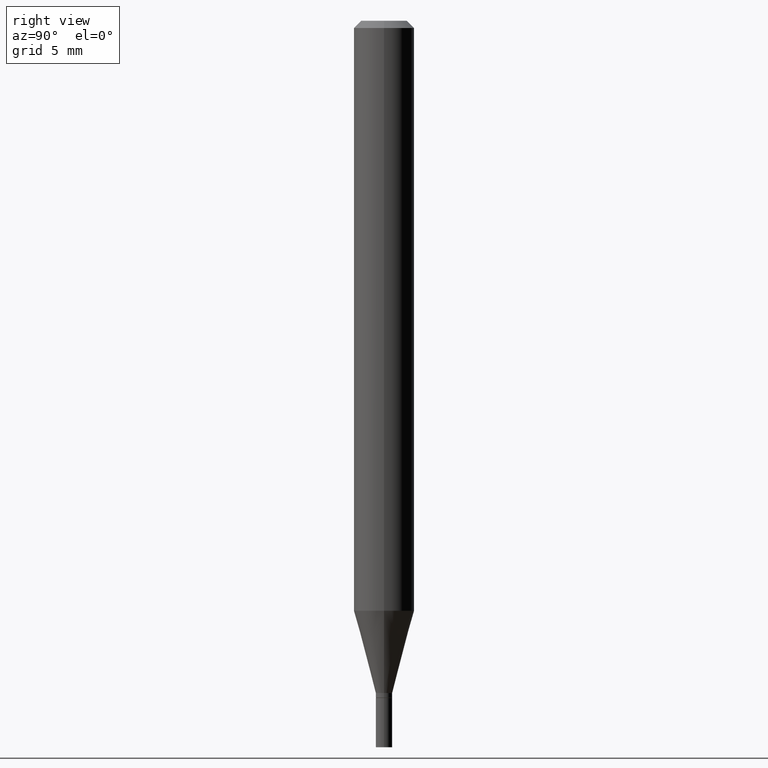
[diagram: clean part render]
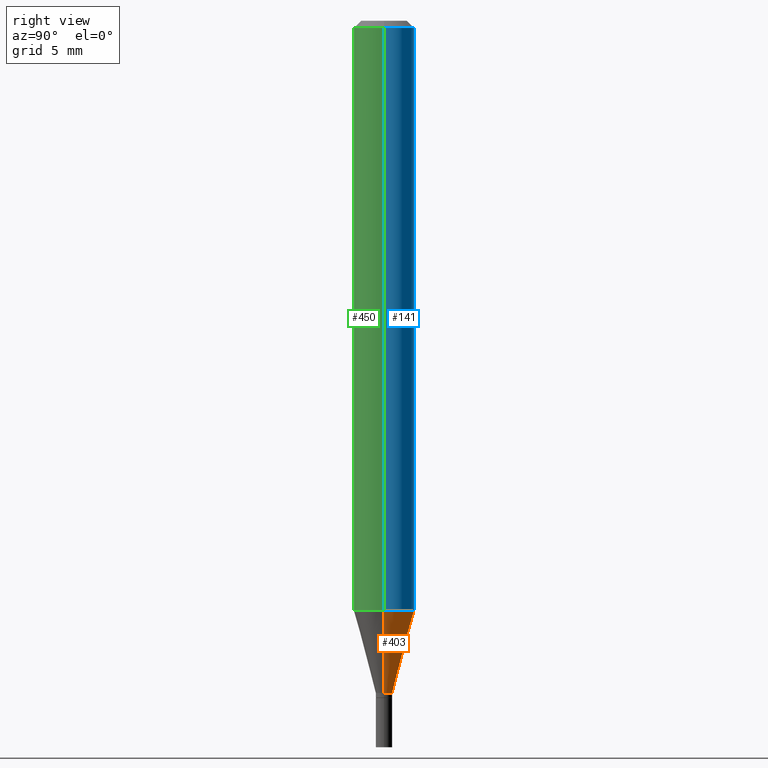
[diagram: same view with three faces highlighted in distinct colors, each labeled with its STEP entity id]
A machine part, right view with three faces highlighted in distinct colors.
Their STEP definitions:

[orange] entity #403 — the highlighted conical surface has half-angle 15 deg.
#1 = CARTESIAN_POINT ( 'NONE',  ( -0.01699999999999992142, -4.267294085031657797E-15, -1.388000000000000123 ) ) ;
#27 = VECTOR ( 'NONE', #295, 39.37007874015747433 ) ;
#34 = CARTESIAN_POINT ( 'NONE',  ( 3.394310702984970054E-29, -4.846176098314285600E-15, -1.388000000000000123 ) ) ;
#57 = CARTESIAN_POINT ( 'NONE',  ( -0.01699999999999992142, -4.725383833235069250E-15, -1.388000000000000123 ) ) ;
#109 = FACE_OUTER_BOUND ( 'NONE', #197, .T. ) ;
#126 = CARTESIAN_POINT ( 'NONE',  ( 0.01699999999999992142, -4.964886463834951787E-15, -1.388000000000000123 ) ) ;
#128 = AXIS2_PLACEMENT_3D ( 'NONE', #34, #379, #422 ) ;
#130 = DIRECTION ( 'NONE',  ( -2.445468806185136597E-29, 3.491481338843145583E-15, 1.000000000000000000 ) ) ;
#148 = VERTEX_POINT ( 'NONE', #1 ) ;
#152 = CARTESIAN_POINT ( 'NONE',  ( 0.01699999999999992142, -4.964886463834951787E-15, -1.388000000000000123 ) ) ;
#153 = CONICAL_SURFACE ( 'NONE', #263, 0.01699999999999992142, 0.2617993877991500740 ) ;
#159 = VECTOR ( 'NONE', #332, 39.37007874015747433 ) ;
#171 = LINE ( 'NONE', #57, #159 ) ;
#178 = ORIENTED_EDGE ( 'NONE', *, *, #245, .T. ) ;
#181 = CIRCLE ( 'NONE', #128, 0.01699999999999992142 ) ;
#183 = EDGE_CURVE ( 'NONE', #214, #346, #218, .T. ) ;
#197 = EDGE_LOOP ( 'NONE', ( #237, #178, #305, #380 ) ) ;
#214 = VERTEX_POINT ( 'NONE', #126 ) ;
#218 = LINE ( 'NONE', #152, #27 ) ;
#237 = ORIENTED_EDGE ( 'NONE', *, *, #408, .T. ) ;
#245 = EDGE_CURVE ( 'NONE', #148, #452, #171, .T. ) ;
#263 = AXIS2_PLACEMENT_3D ( 'NONE', #280, #275, #309 ) ;
#264 = CARTESIAN_POINT ( 'NONE',  ( 0.06250000000000000000, -4.689728714033702207E-15, -1.218191688255616301 ) ) ;
#266 = CARTESIAN_POINT ( 'NONE',  ( 2.979049773583118169E-29, -4.253293546678310537E-15, -1.218191688255616301 ) ) ;
#275 = DIRECTION ( 'NONE',  ( -2.445468806185136597E-29, 3.491481338843145583E-15, 1.000000000000000000 ) ) ;
#280 = CARTESIAN_POINT ( 'NONE',  ( 3.394310702984970054E-29, -4.846176098314285600E-15, -1.388000000000000123 ) ) ;
#295 = DIRECTION ( 'NONE',  ( 0.2588190451025213501, 1.565188264969621968E-15, 0.9659258262890682012 ) ) ;
#305 = ORIENTED_EDGE ( 'NONE', *, *, #336, .F. ) ;
#309 = DIRECTION ( 'NONE',  ( 1.000000000000000000, -6.982962677686250933E-15, 0.000000000000000000 ) ) ;
#332 = DIRECTION ( 'NONE',  ( -0.2588190451025213501, 5.211531920934551042E-15, 0.9659258262890682012 ) ) ;
#336 = EDGE_CURVE ( 'NONE', #346, #452, #389, .T. ) ;
#346 = VERTEX_POINT ( 'NONE', #264 ) ;
#373 = DIRECTION ( 'NONE',  ( 1.000000000000000000, -6.982962677686270655E-15, 0.000000000000000000 ) ) ;
#377 = CARTESIAN_POINT ( 'NONE',  ( -0.06250000000000000000, -3.809204336828247921E-15, -1.218191688255616301 ) ) ;
#379 = DIRECTION ( 'NONE',  ( -2.445468806185136597E-29, 3.491481338843145583E-15, 1.000000000000000000 ) ) ;
#380 = ORIENTED_EDGE ( 'NONE', *, *, #183, .F. ) ;
#389 = CIRCLE ( 'NONE', #416, 0.06250000000000000000 ) ;
#403 = ADVANCED_FACE ( 'NONE', ( #109 ), #153, .T. ) ;
#408 = EDGE_CURVE ( 'NONE', #214, #148, #181, .T. ) ;
#416 = AXIS2_PLACEMENT_3D ( 'NONE', #266, #130, #373 ) ;
#422 = DIRECTION ( 'NONE',  ( 1.000000000000000000, -6.982962677686250933E-15, 0.000000000000000000 ) ) ;
#452 = VERTEX_POINT ( 'NONE', #377 ) ;

[blue] entity #141 — the highlighted cylindrical surface (edge-blend (fillet) strip) has radius 1.5875 mm, axis along (-0, 0, 1).
#13 = ORIENTED_EDGE ( 'NONE', *, *, #336, .T. ) ;
#31 = LINE ( 'NONE', #64, #461 ) ;
#38 = VERTEX_POINT ( 'NONE', #123 ) ;
#64 = CARTESIAN_POINT ( 'NONE',  ( -0.06250000000000000000, 4.440892098500626162E-16, -3.074334431409316114E-30 ) ) ;
#75 = AXIS2_PLACEMENT_3D ( 'NONE', #449, #448, #301 ) ;
#80 = FACE_OUTER_BOUND ( 'NONE', #384, .T. ) ;
#84 = DIRECTION ( 'NONE',  ( 1.000000000000000000, -6.982962677686266711E-15, 4.876176775795935793E-29 ) ) ;
#95 = CIRCLE ( 'NONE', #75, 0.06250000000000000000 ) ;
#113 = CARTESIAN_POINT ( 'NONE',  ( 0.000000000000000000, 0.000000000000000000, 0.000000000000000000 ) ) ;
#123 = CARTESIAN_POINT ( 'NONE',  ( -0.06250000000000000000, -1.708743673530416389E-15, -0.01499999999999999944 ) ) ;
#130 = DIRECTION ( 'NONE',  ( -2.445468806185136597E-29, 3.491481338843145583E-15, 1.000000000000000000 ) ) ;
#141 = ADVANCED_FACE ( 'NONE', ( #80 ), #150, .T. ) ;
#150 = CYLINDRICAL_SURFACE ( 'NONE', #453, 0.06250000000000000000 ) ;
#166 = VERTEX_POINT ( 'NONE', #391 ) ;
#201 = ORIENTED_EDGE ( 'NONE', *, *, #329, .F. ) ;
#211 = VECTOR ( 'NONE', #236, 39.37007874015748143 ) ;
#216 = EDGE_CURVE ( 'NONE', #346, #166, #369, .T. ) ;
#224 = DIRECTION ( 'NONE',  ( -2.445468806185136597E-29, 3.491481338843145583E-15, 1.000000000000000000 ) ) ;
#236 = DIRECTION ( 'NONE',  ( -2.445468806185136877E-29, 3.491481338843145188E-15, 1.000000000000000000 ) ) ;
#264 = CARTESIAN_POINT ( 'NONE',  ( 0.06250000000000000000, -4.689728714033702207E-15, -1.218191688255616301 ) ) ;
#266 = CARTESIAN_POINT ( 'NONE',  ( 2.979049773583118169E-29, -4.253293546678310537E-15, -1.218191688255616301 ) ) ;
#301 = DIRECTION ( 'NONE',  ( 1.000000000000000000, -6.982962677686266711E-15, 0.000000000000000000 ) ) ;
#329 = EDGE_CURVE ( 'NONE', #166, #38, #95, .T. ) ;
#334 = CARTESIAN_POINT ( 'NONE',  ( 0.06250000000000000000, -4.364351673553916694E-16, 3.047610484872459871E-30 ) ) ;
#336 = EDGE_CURVE ( 'NONE', #346, #452, #389, .T. ) ;
#342 = ORIENTED_EDGE ( 'NONE', *, *, #216, .F. ) ;
#346 = VERTEX_POINT ( 'NONE', #264 ) ;
#369 = LINE ( 'NONE', #334, #211 ) ;
#373 = DIRECTION ( 'NONE',  ( 1.000000000000000000, -6.982962677686270655E-15, 0.000000000000000000 ) ) ;
#377 = CARTESIAN_POINT ( 'NONE',  ( -0.06250000000000000000, -3.809204336828247921E-15, -1.218191688255616301 ) ) ;
#384 = EDGE_LOOP ( 'NONE', ( #13, #459, #201, #342 ) ) ;
#389 = CIRCLE ( 'NONE', #416, 0.06250000000000000000 ) ;
#391 = CARTESIAN_POINT ( 'NONE',  ( 0.06250000000000000000, -4.888073874380388472E-16, -0.01499999999999999944 ) ) ;
#416 = AXIS2_PLACEMENT_3D ( 'NONE', #266, #130, #373 ) ;
#420 = DIRECTION ( 'NONE',  ( -2.445468806185136877E-29, 3.491481338843145188E-15, 1.000000000000000000 ) ) ;
#448 = DIRECTION ( 'NONE',  ( -2.445468806185136597E-29, 3.491481338843145583E-15, 1.000000000000000000 ) ) ;
#449 = CARTESIAN_POINT ( 'NONE',  ( 3.668203209277705088E-31, -5.237222008264718399E-17, -0.01499999999999999944 ) ) ;
#452 = VERTEX_POINT ( 'NONE', #377 ) ;
#453 = AXIS2_PLACEMENT_3D ( 'NONE', #113, #224, #84 ) ;
#459 = ORIENTED_EDGE ( 'NONE', *, *, #464, .T. ) ;
#461 = VECTOR ( 'NONE', #420, 39.37007874015748143 ) ;
#464 = EDGE_CURVE ( 'NONE', #452, #38, #31, .T. ) ;

[green] entity #450 — the highlighted cylindrical surface (edge-blend (fillet) strip) has radius 1.5875 mm, axis along (-0, 0, 1).
#26 = FACE_OUTER_BOUND ( 'NONE', #402, .T. ) ;
#30 = ORIENTED_EDGE ( 'NONE', *, *, #210, .T. ) ;
#31 = LINE ( 'NONE', #64, #461 ) ;
#38 = VERTEX_POINT ( 'NONE', #123 ) ;
#64 = CARTESIAN_POINT ( 'NONE',  ( -0.06250000000000000000, 4.440892098500626162E-16, -3.074334431409316114E-30 ) ) ;
#123 = CARTESIAN_POINT ( 'NONE',  ( -0.06250000000000000000, -1.708743673530416389E-15, -0.01499999999999999944 ) ) ;
#124 = DIRECTION ( 'NONE',  ( 1.000000000000000000, -6.982962677686270655E-15, 0.000000000000000000 ) ) ;
#125 = ORIENTED_EDGE ( 'NONE', *, *, #216, .T. ) ;
#137 = DIRECTION ( 'NONE',  ( -2.445468806185136597E-29, 3.491481338843145583E-15, 1.000000000000000000 ) ) ;
#139 = EDGE_CURVE ( 'NONE', #38, #166, #388, .T. ) ;
#147 = CYLINDRICAL_SURFACE ( 'NONE', #188, 0.06250000000000000000 ) ;
#166 = VERTEX_POINT ( 'NONE', #391 ) ;
#188 = AXIS2_PLACEMENT_3D ( 'NONE', #282, #137, #347 ) ;
#203 = CIRCLE ( 'NONE', #447, 0.06250000000000000000 ) ;
#210 = EDGE_CURVE ( 'NONE', #452, #346, #203, .T. ) ;
#211 = VECTOR ( 'NONE', #236, 39.37007874015748143 ) ;
#216 = EDGE_CURVE ( 'NONE', #346, #166, #369, .T. ) ;
#236 = DIRECTION ( 'NONE',  ( -2.445468806185136877E-29, 3.491481338843145188E-15, 1.000000000000000000 ) ) ;
#264 = CARTESIAN_POINT ( 'NONE',  ( 0.06250000000000000000, -4.689728714033702207E-15, -1.218191688255616301 ) ) ;
#282 = CARTESIAN_POINT ( 'NONE',  ( 0.000000000000000000, 0.000000000000000000, 0.000000000000000000 ) ) ;
#283 = ORIENTED_EDGE ( 'NONE', *, *, #139, .F. ) ;
#294 = DIRECTION ( 'NONE',  ( -2.445468806185136597E-29, 3.491481338843145583E-15, 1.000000000000000000 ) ) ;
#296 = CARTESIAN_POINT ( 'NONE',  ( 2.979049773583118169E-29, -4.253293546678310537E-15, -1.218191688255616301 ) ) ;
#320 = DIRECTION ( 'NONE',  ( 1.000000000000000000, -6.982962677686266711E-15, 0.000000000000000000 ) ) ;
#334 = CARTESIAN_POINT ( 'NONE',  ( 0.06250000000000000000, -4.364351673553916694E-16, 3.047610484872459871E-30 ) ) ;
#338 = AXIS2_PLACEMENT_3D ( 'NONE', #394, #294, #320 ) ;
#346 = VERTEX_POINT ( 'NONE', #264 ) ;
#347 = DIRECTION ( 'NONE',  ( 1.000000000000000000, -6.982962677686266711E-15, 4.876176775795935793E-29 ) ) ;
#349 = ORIENTED_EDGE ( 'NONE', *, *, #464, .F. ) ;
#369 = LINE ( 'NONE', #334, #211 ) ;
#371 = DIRECTION ( 'NONE',  ( -2.445468806185136597E-29, 3.491481338843145583E-15, 1.000000000000000000 ) ) ;
#377 = CARTESIAN_POINT ( 'NONE',  ( -0.06250000000000000000, -3.809204336828247921E-15, -1.218191688255616301 ) ) ;
#388 = CIRCLE ( 'NONE', #338, 0.06250000000000000000 ) ;
#391 = CARTESIAN_POINT ( 'NONE',  ( 0.06250000000000000000, -4.888073874380388472E-16, -0.01499999999999999944 ) ) ;
#394 = CARTESIAN_POINT ( 'NONE',  ( 3.668203209277705088E-31, -5.237222008264718399E-17, -0.01499999999999999944 ) ) ;
#402 = EDGE_LOOP ( 'NONE', ( #349, #30, #125, #283 ) ) ;
#420 = DIRECTION ( 'NONE',  ( -2.445468806185136877E-29, 3.491481338843145188E-15, 1.000000000000000000 ) ) ;
#447 = AXIS2_PLACEMENT_3D ( 'NONE', #296, #371, #124 ) ;
#450 = ADVANCED_FACE ( 'NONE', ( #26 ), #147, .T. ) ;
#452 = VERTEX_POINT ( 'NONE', #377 ) ;
#461 = VECTOR ( 'NONE', #420, 39.37007874015748143 ) ;
#464 = EDGE_CURVE ( 'NONE', #452, #38, #31, .T. ) ;